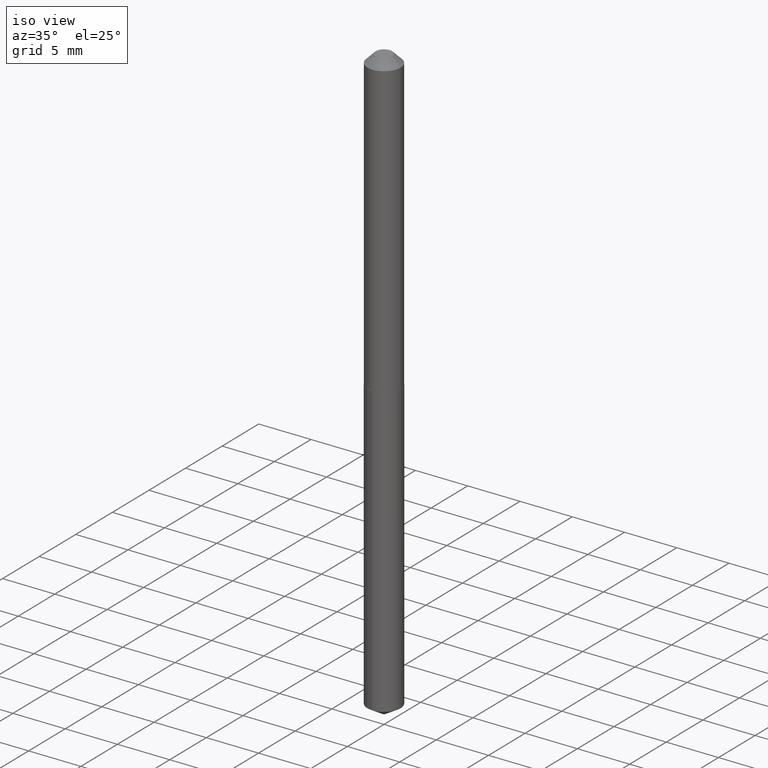
[diagram: clean part render]
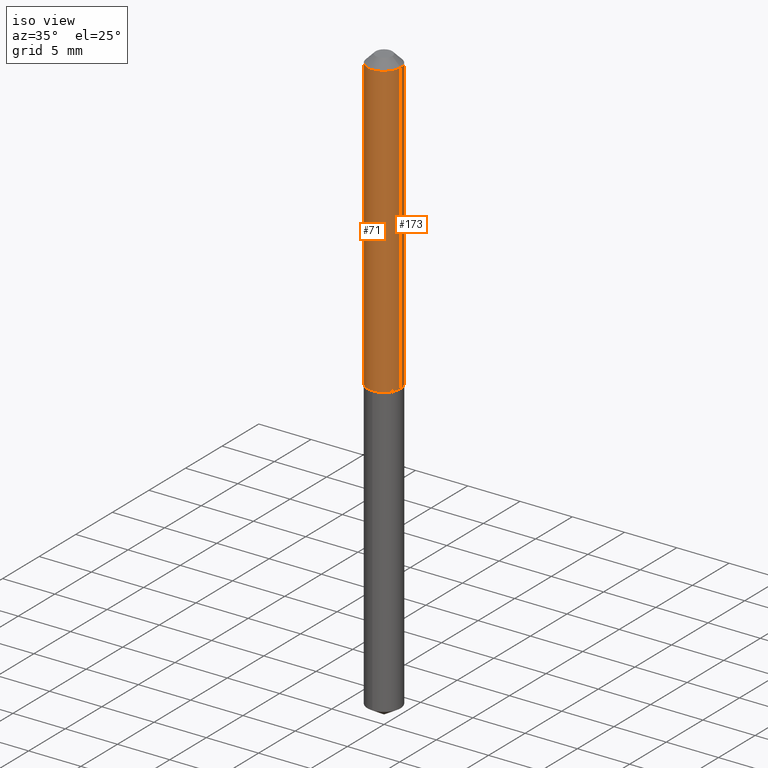
[diagram: same view with one multi-face feature highlighted, each face labeled with its STEP entity id]
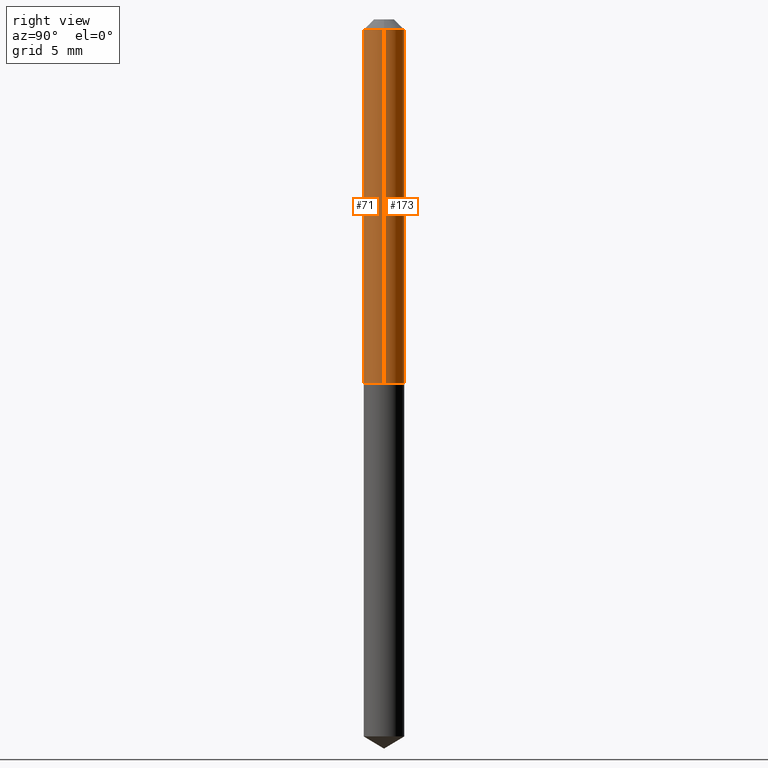
[diagram: same view with one multi-face feature highlighted, each face labeled with its STEP entity id]
A machine part, iso view. The highlighted faces form ONE feature: a constant-radius fillet chain: 2 tangent blend faces with common blend radius 1.5875 mm. The faces share edges in the B-rep.
A second angle (right view) of the same feature is appended — it is thin or edge-on in the first view.
Their STEP definitions:
[1] entity #71 (Cylinder):
#1 = DIRECTION ( 'NONE',  ( -2.445468806185136877E-29, 3.491481338843145188E-15, 1.000000000000000000 ) ) ;
#8 = DIRECTION ( 'NONE',  ( 1.000000000000000000, -6.982962677686266711E-15, 4.876176775795935793E-29 ) ) ;
#32 = CIRCLE ( 'NONE', #323, 0.06250000000000000000 ) ;
#38 = CARTESIAN_POINT ( 'NONE',  ( 2.749929672555185870E-29, -3.926170765529116932E-15, -1.124500000000000055 ) ) ;
#40 = EDGE_CURVE ( 'NONE', #215, #185, #196, .T. ) ;
#67 = DIRECTION ( 'NONE',  ( 1.000000000000000000, -6.982962677686266711E-15, 0.000000000000000000 ) ) ;
#71 = ADVANCED_FACE ( 'NONE', ( #332 ), #192, .T. ) ;
#74 = AXIS2_PLACEMENT_3D ( 'NONE', #38, #279, #98 ) ;
#80 = CARTESIAN_POINT ( 'NONE',  ( -0.06250000000000013878, -3.482081555679053527E-15, -1.124500000000000055 ) ) ;
#81 = EDGE_CURVE ( 'NONE', #100, #291, #32, .T. ) ;
#93 = ORIENTED_EDGE ( 'NONE', *, *, #40, .T. ) ;
#95 = CARTESIAN_POINT ( 'NONE',  ( 7.642090019328601786E-31, -1.091087918388490144E-16, -0.03125000000000020123 ) ) ;
#98 = DIRECTION ( 'NONE',  ( 1.000000000000000000, -6.982962677686262766E-15, 0.000000000000000000 ) ) ;
#100 = VERTEX_POINT ( 'NONE', #310 ) ;
#110 = EDGE_CURVE ( 'NONE', #215, #100, #211, .T. ) ;
#135 = CARTESIAN_POINT ( 'NONE',  ( -0.06250000000000006939, 4.440892098500631092E-16, -3.074334431409319267E-30 ) ) ;
#152 = CARTESIAN_POINT ( 'NONE',  ( 0.06250000000000013878, -4.362605932884509390E-15, -1.124500000000000055 ) ) ;
#157 = CARTESIAN_POINT ( 'NONE',  ( 0.000000000000000000, 0.000000000000000000, 0.000000000000000000 ) ) ;
#185 = VERTEX_POINT ( 'NONE', #152 ) ;
#191 = CARTESIAN_POINT ( 'NONE',  ( 0.06250000000000000000, -5.455439591942406714E-16, -0.03125000000000020123 ) ) ;
#192 = CYLINDRICAL_SURFACE ( 'NONE', #257, 0.06250000000000006939 ) ;
#196 = CIRCLE ( 'NONE', #74, 0.06250000000000013878 ) ;
#197 = VECTOR ( 'NONE', #265, 39.37007874015748143 ) ;
#211 = LINE ( 'NONE', #135, #373 ) ;
#214 = ORIENTED_EDGE ( 'NONE', *, *, #81, .F. ) ;
#215 = VERTEX_POINT ( 'NONE', #80 ) ;
#219 = DIRECTION ( 'NONE',  ( -2.445468806185136597E-29, 3.491481338843145583E-15, 1.000000000000000000 ) ) ;
#228 = ORIENTED_EDGE ( 'NONE', *, *, #343, .T. ) ;
#257 = AXIS2_PLACEMENT_3D ( 'NONE', #157, #365, #8 ) ;
#265 = DIRECTION ( 'NONE',  ( -2.445468806185136877E-29, 3.491481338843145188E-15, 1.000000000000000000 ) ) ;
#269 = LINE ( 'NONE', #298, #197 ) ;
#275 = EDGE_LOOP ( 'NONE', ( #339, #93, #228, #214 ) ) ;
#279 = DIRECTION ( 'NONE',  ( -2.445468806185136597E-29, 3.491481338843145583E-15, 1.000000000000000000 ) ) ;
#291 = VERTEX_POINT ( 'NONE', #191 ) ;
#298 = CARTESIAN_POINT ( 'NONE',  ( 0.06250000000000006939, -4.364351673553921624E-16, 3.047610484872463374E-30 ) ) ;
#310 = CARTESIAN_POINT ( 'NONE',  ( -0.06250000000000000000, -1.573550568833919217E-15, -0.03125000000000020123 ) ) ;
#323 = AXIS2_PLACEMENT_3D ( 'NONE', #95, #219, #67 ) ;
#332 = FACE_OUTER_BOUND ( 'NONE', #275, .T. ) ;
#339 = ORIENTED_EDGE ( 'NONE', *, *, #110, .F. ) ;
#343 = EDGE_CURVE ( 'NONE', #185, #291, #269, .T. ) ;
#365 = DIRECTION ( 'NONE',  ( -2.445468806185136597E-29, 3.491481338843145583E-15, 1.000000000000000000 ) ) ;
#373 = VECTOR ( 'NONE', #1, 39.37007874015748143 ) ;
[2] entity #173 (Cylinder):
#1 = DIRECTION ( 'NONE',  ( -2.445468806185136877E-29, 3.491481338843145188E-15, 1.000000000000000000 ) ) ;
#21 = CARTESIAN_POINT ( 'NONE',  ( 0.000000000000000000, 0.000000000000000000, 0.000000000000000000 ) ) ;
#22 = EDGE_LOOP ( 'NONE', ( #46, #194, #384, #170 ) ) ;
#29 = DIRECTION ( 'NONE',  ( 1.000000000000000000, -6.982962677686266711E-15, 4.876176775795935793E-29 ) ) ;
#46 = ORIENTED_EDGE ( 'NONE', *, *, #181, .T. ) ;
#73 = DIRECTION ( 'NONE',  ( -2.445468806185136597E-29, 3.491481338843145583E-15, 1.000000000000000000 ) ) ;
#80 = CARTESIAN_POINT ( 'NONE',  ( -0.06250000000000013878, -3.482081555679053527E-15, -1.124500000000000055 ) ) ;
#88 = CARTESIAN_POINT ( 'NONE',  ( 2.749929672555185870E-29, -3.926170765529116932E-15, -1.124500000000000055 ) ) ;
#90 = FACE_OUTER_BOUND ( 'NONE', #22, .T. ) ;
#100 = VERTEX_POINT ( 'NONE', #310 ) ;
#110 = EDGE_CURVE ( 'NONE', #215, #100, #211, .T. ) ;
#121 = AXIS2_PLACEMENT_3D ( 'NONE', #21, #302, #29 ) ;
#126 = CIRCLE ( 'NONE', #334, 0.06250000000000000000 ) ;
#135 = CARTESIAN_POINT ( 'NONE',  ( -0.06250000000000006939, 4.440892098500631092E-16, -3.074334431409319267E-30 ) ) ;
#152 = CARTESIAN_POINT ( 'NONE',  ( 0.06250000000000013878, -4.362605932884509390E-15, -1.124500000000000055 ) ) ;
#170 = ORIENTED_EDGE ( 'NONE', *, *, #343, .F. ) ;
#171 = CYLINDRICAL_SURFACE ( 'NONE', #121, 0.06250000000000006939 ) ;
#173 = ADVANCED_FACE ( 'NONE', ( #90 ), #171, .T. ) ;
#179 = CIRCLE ( 'NONE', #201, 0.06250000000000013878 ) ;
#181 = EDGE_CURVE ( 'NONE', #185, #215, #179, .T. ) ;
#185 = VERTEX_POINT ( 'NONE', #152 ) ;
#191 = CARTESIAN_POINT ( 'NONE',  ( 0.06250000000000000000, -5.455439591942406714E-16, -0.03125000000000020123 ) ) ;
#194 = ORIENTED_EDGE ( 'NONE', *, *, #110, .T. ) ;
#195 = DIRECTION ( 'NONE',  ( 1.000000000000000000, -6.982962677686266711E-15, 0.000000000000000000 ) ) ;
#197 = VECTOR ( 'NONE', #265, 39.37007874015748143 ) ;
#201 = AXIS2_PLACEMENT_3D ( 'NONE', #88, #352, #369 ) ;
#211 = LINE ( 'NONE', #135, #373 ) ;
#215 = VERTEX_POINT ( 'NONE', #80 ) ;
#265 = DIRECTION ( 'NONE',  ( -2.445468806185136877E-29, 3.491481338843145188E-15, 1.000000000000000000 ) ) ;
#269 = LINE ( 'NONE', #298, #197 ) ;
#291 = VERTEX_POINT ( 'NONE', #191 ) ;
#298 = CARTESIAN_POINT ( 'NONE',  ( 0.06250000000000006939, -4.364351673553921624E-16, 3.047610484872463374E-30 ) ) ;
#302 = DIRECTION ( 'NONE',  ( -2.445468806185136597E-29, 3.491481338843145583E-15, 1.000000000000000000 ) ) ;
#310 = CARTESIAN_POINT ( 'NONE',  ( -0.06250000000000000000, -1.573550568833919217E-15, -0.03125000000000020123 ) ) ;
#321 = EDGE_CURVE ( 'NONE', #291, #100, #126, .T. ) ;
#334 = AXIS2_PLACEMENT_3D ( 'NONE', #342, #73, #195 ) ;
#342 = CARTESIAN_POINT ( 'NONE',  ( 7.642090019328601786E-31, -1.091087918388490144E-16, -0.03125000000000020123 ) ) ;
#343 = EDGE_CURVE ( 'NONE', #185, #291, #269, .T. ) ;
#352 = DIRECTION ( 'NONE',  ( -2.445468806185136597E-29, 3.491481338843145583E-15, 1.000000000000000000 ) ) ;
#369 = DIRECTION ( 'NONE',  ( 1.000000000000000000, -6.982962677686262766E-15, 0.000000000000000000 ) ) ;
#373 = VECTOR ( 'NONE', #1, 39.37007874015748143 ) ;
#384 = ORIENTED_EDGE ( 'NONE', *, *, #321, .F. ) ;